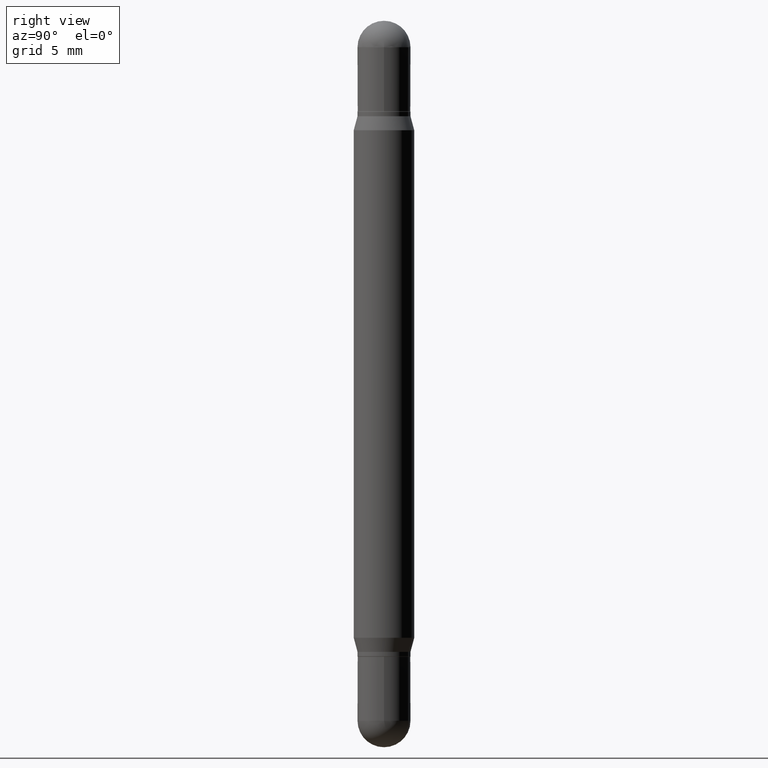
[diagram: clean part render]
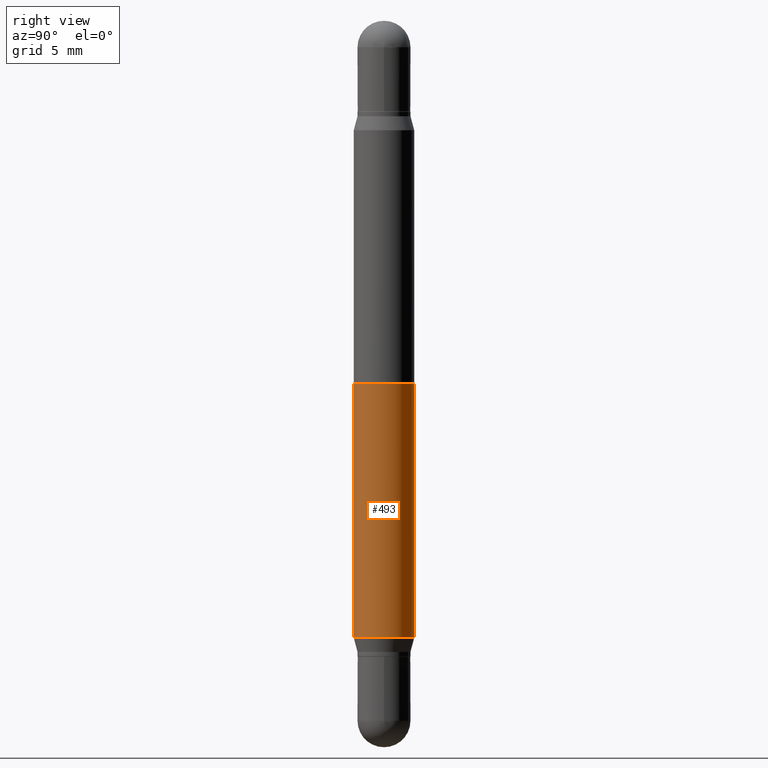
[diagram: same view with one face highlighted and labeled with its STEP entity id]
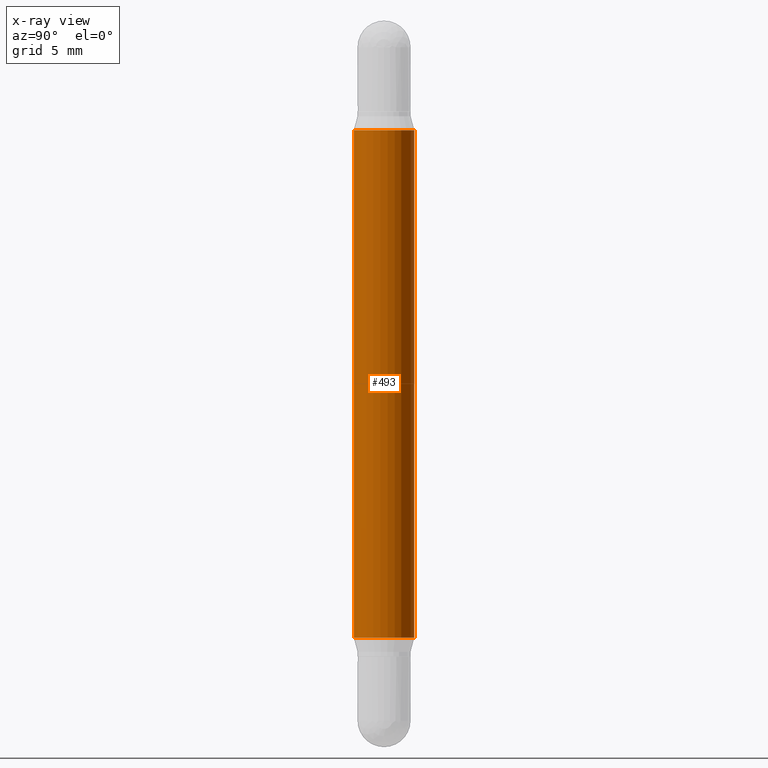
[diagram: x-ray of the same camera — body ghosted, the highlighted face saturated]
A machine part, right view. The second image highlights one B-rep face of the part: STEP entity #493.
The next image is the same camera in x-ray: the body ghosted, the highlighted face saturated — about 0% of this face is hidden behind the body in this view.
In plain terms, the highlighted cylindrical surface (edge-blend (fillet) strip) has radius 1.5875 mm, axis along (-0, -0, -1).
Its self-contained STEP definition (entity closure, byte-faithful):
#7 = ORIENTED_EDGE ( 'NONE', *, *, #990, .T. ) ;
#15 = DIRECTION ( 'NONE',  ( -2.445609517047439160E-29, 3.491279832879563417E-15, 1.000000000000000000 ) ) ;
#40 = EDGE_CURVE ( 'NONE', #122, #873, #827, .T. ) ;
#71 = CYLINDRICAL_SURFACE ( 'NONE', #1084, 0.06250000000000000000 ) ;
#83 = CARTESIAN_POINT ( 'NONE',  ( -4.364351673553604601E-16, -0.06250000000000444089, -1.273890003700961282 ) ) ;
#117 = EDGE_CURVE ( 'NONE', #799, #873, #1027, .T. ) ;
#122 = VERTEX_POINT ( 'NONE', #83 ) ;
#126 = CARTESIAN_POINT ( 'NONE',  ( 4.287811248607517840E-16, 0.06249999999999920203, -0.2261099962990389678 ) ) ;
#154 = VECTOR ( 'NONE', #250, 39.37007874015748143 ) ;
#172 = AXIS2_PLACEMENT_3D ( 'NONE', #1073, #15, #1049 ) ;
#182 = DIRECTION ( 'NONE',  ( -6.982962677686265922E-15, -1.000000000000000000, 4.370956789862821150E-15 ) ) ;
#250 = DIRECTION ( 'NONE',  ( -2.445609517047438880E-29, -3.479815972941410420E-15, -1.000000000000000000 ) ) ;
#274 = DIRECTION ( 'NONE',  ( -6.982962677686265922E-15, -1.000000000000000000, 3.278217592397115862E-15 ) ) ;
#363 = ORIENTED_EDGE ( 'NONE', *, *, #117, .F. ) ;
#365 = CARTESIAN_POINT ( 'NONE',  ( 3.115437516722669397E-29, -7.954190717167327940E-16, -0.2261099962990387735 ) ) ;
#381 = DIRECTION ( 'NONE',  ( 2.445609517047439160E-29, 3.479815972941410420E-15, 1.000000000000000000 ) ) ;
#394 = CARTESIAN_POINT ( 'NONE',  ( 4.287811248607390144E-16, 0.06249999999999555217, -1.273890003700961948 ) ) ;
#493 = ADVANCED_FACE ( 'NONE', ( #999 ), #71, .T. ) ;
#522 = AXIS2_PLACEMENT_3D ( 'NONE', #365, #381, #274 ) ;
#582 = LINE ( 'NONE', #944, #991 ) ;
#584 = DIRECTION ( 'NONE',  ( -2.445609517047439160E-29, -3.479815972941410420E-15, -1.000000000000000000 ) ) ;
#640 = EDGE_CURVE ( 'NONE', #1018, #799, #743, .T. ) ;
#743 = CIRCLE ( 'NONE', #522, 0.06250000000000000000 ) ;
#784 = CARTESIAN_POINT ( 'NONE',  ( 0.000000000000000000, -5.228321854365732350E-15, -1.500000000000000444 ) ) ;
#799 = VERTEX_POINT ( 'NONE', #126 ) ;
#827 = CIRCLE ( 'NONE', #172, 0.06250000000000000000 ) ;
#847 = CARTESIAN_POINT ( 'NONE',  ( 4.287811248607206733E-16, 0.06249999999999477501, -1.500000000000000666 ) ) ;
#873 = VERTEX_POINT ( 'NONE', #394 ) ;
#896 = EDGE_LOOP ( 'NONE', ( #363, #1113, #7, #928 ) ) ;
#928 = ORIENTED_EDGE ( 'NONE', *, *, #40, .T. ) ;
#934 = DIRECTION ( 'NONE',  ( -2.445609517047438880E-29, -3.479815972941410420E-15, -1.000000000000000000 ) ) ;
#944 = CARTESIAN_POINT ( 'NONE',  ( -4.364351673553916201E-16, -0.06250000000000521805, -1.500000000000000222 ) ) ;
#990 = EDGE_CURVE ( 'NONE', #1018, #122, #582, .T. ) ;
#991 = VECTOR ( 'NONE', #934, 39.37007874015748143 ) ;
#999 = FACE_OUTER_BOUND ( 'NONE', #896, .T. ) ;
#1018 = VERTEX_POINT ( 'NONE', #1111 ) ;
#1027 = LINE ( 'NONE', #847, #154 ) ;
#1049 = DIRECTION ( 'NONE',  ( -6.982962677686265922E-15, -1.000000000000000000, 4.370956789862821150E-15 ) ) ;
#1073 = CARTESIAN_POINT ( 'NONE',  ( 3.115437516722669397E-29, -4.447506479228039854E-15, -1.273890003700961726 ) ) ;
#1084 = AXIS2_PLACEMENT_3D ( 'NONE', #784, #584, #182 ) ;
#1111 = CARTESIAN_POINT ( 'NONE',  ( -4.364351673553605094E-16, -0.06250000000000079103, -0.2261099962990385792 ) ) ;
#1113 = ORIENTED_EDGE ( 'NONE', *, *, #640, .F. ) ;